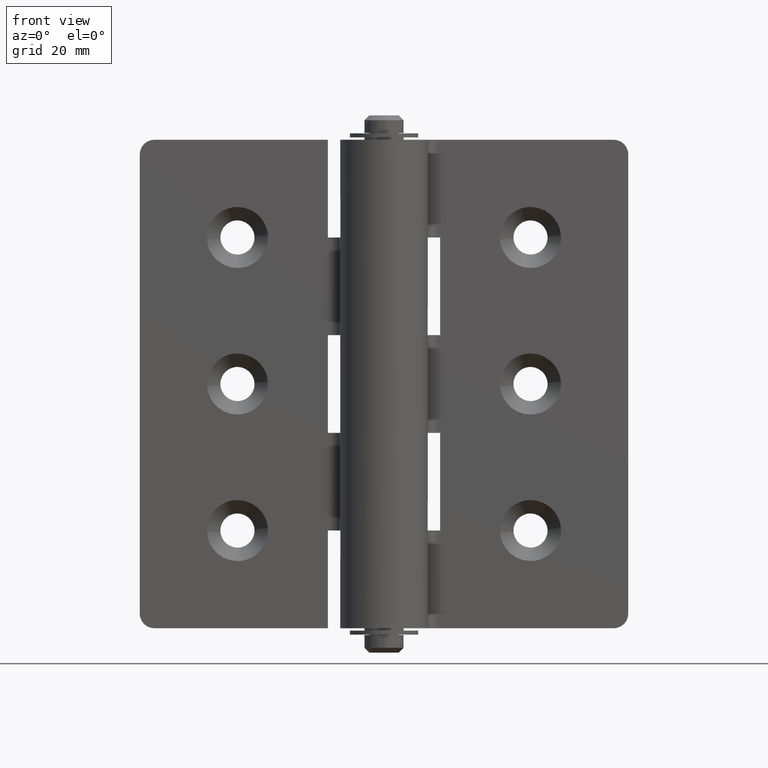
[diagram: clean part render]
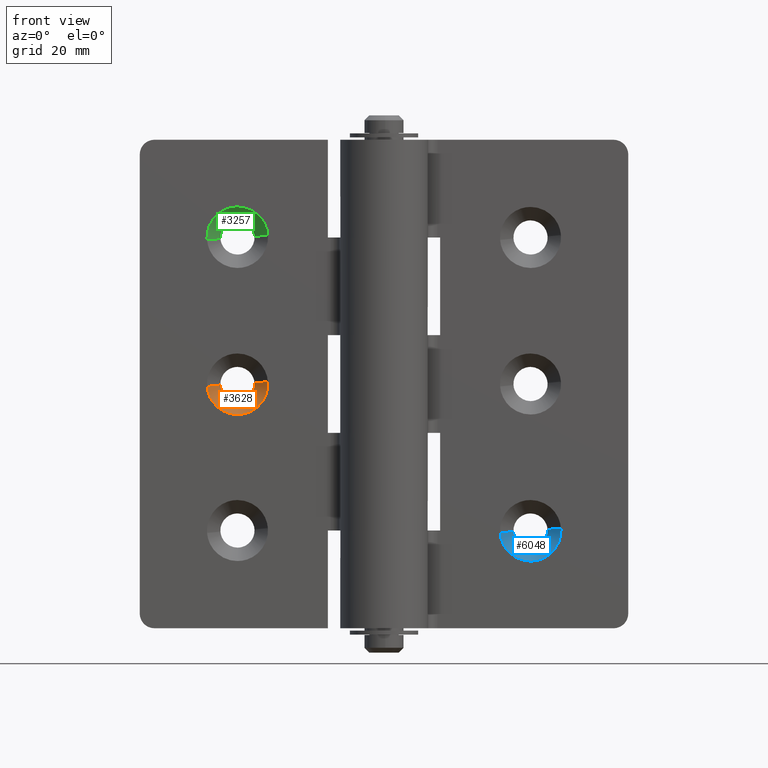
[diagram: same view with three faces highlighted in distinct colors, each labeled with its STEP entity id]
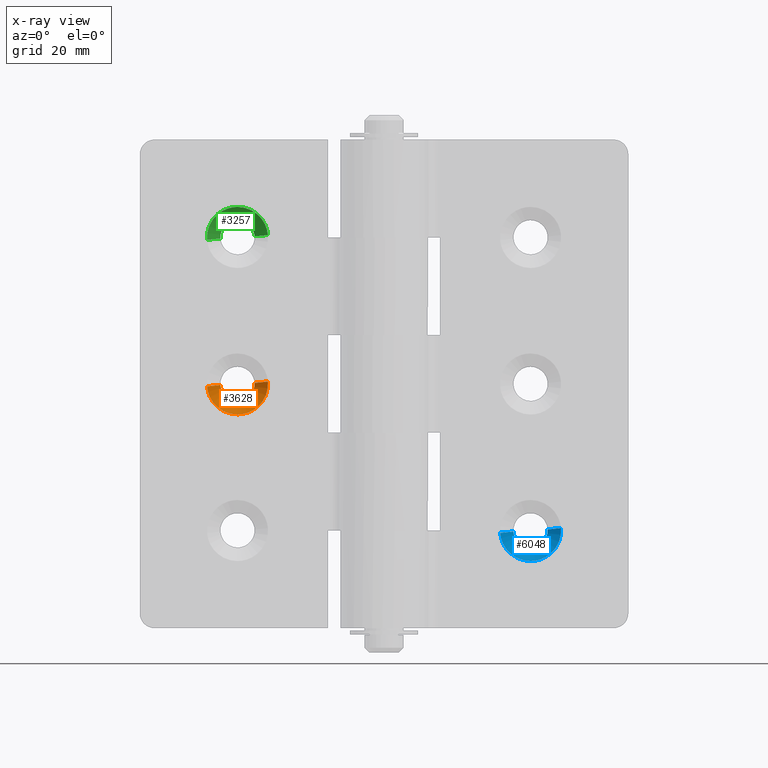
[diagram: x-ray of the same camera — body ghosted, the three highlighted faces saturated]
A machine part, front view with three faces highlighted in distinct colors.
The next image is the same camera in x-ray (body ghosted, the three faces saturated) — at least one of them is partly hidden behind the body in this view.
Their STEP definitions:

[orange] entity #3628 — the highlighted face is a freeform B-spline surface patch.
#3369=CARTESIAN_POINT('',(-33.493471831055729,5.749999999915170,49.786330708999522));
#3370=VERTEX_POINT('',#3369);
#3376=CARTESIAN_POINT('',(-30.0,5.750000000000000,46.500000000000000));
#3377=VERTEX_POINT('',#3376);
#3378=CARTESIAN_POINT('',(-30.0,5.750000000000000,46.500000000000000));
#3379=CARTESIAN_POINT('',(-33.237497301722996,5.749999999957585,46.530468772346985));
#3380=CARTESIAN_POINT('',(-33.493471831055729,5.749999999915170,49.786330708999515));
#3388=(BOUNDED_CURVE()B_SPLINE_CURVE(2,(#3378,#3379,#3380),.UNSPECIFIED.,.F.,.U.)B_SPLINE_CURVE_WITH_KNOTS((3,3),(0.500000000000000,0.736331300601017),.UNSPECIFIED.)CURVE()GEOMETRIC_REPRESENTATION_ITEM()RATIONAL_B_SPLINE_CURVE((1.0,0.723120658642394,0.969723356105556))REPRESENTATION_ITEM(''));
#3389=EDGE_CURVE('',#3377,#3370,#3388,.T.);
#3391=CARTESIAN_POINT('',(-26.506528205584232,5.749999999915169,50.213669890060061));
#3392=VERTEX_POINT('',#3391);
#3393=CARTESIAN_POINT('',(-26.506528205584221,5.749999999915169,50.213669890060061));
#3394=CARTESIAN_POINT('',(-26.499999999958376,5.749999999916399,50.106934672393429));
#3395=CARTESIAN_POINT('',(-26.499999999959030,5.749999999917705,50.000000000003951));
#3396=CARTESIAN_POINT('',(-26.499999999980503,5.749999999960471,46.500000000001890));
#3397=CARTESIAN_POINT('',(-30.0,5.750000000000000,46.500000000000000));
#3405=(BOUNDED_CURVE()B_SPLINE_CURVE(2,(#3393,#3394,#3395,#3396,#3397),.UNSPECIFIED.,.F.,.U.)B_SPLINE_CURVE_WITH_KNOTS((3,2,3),(0.239332962158794,0.250000000000000,0.500000000000000),.UNSPECIFIED.)CURVE()GEOMETRIC_REPRESENTATION_ITEM()RATIONAL_B_SPLINE_CURVE((0.976072041494943,0.987502787805937,1.0,0.707106781186547,1.0))REPRESENTATION_ITEM(''));
#3406=EDGE_CURVE('',#3392,#3377,#3405,.T.);
#3522=CARTESIAN_POINT('',(-23.769266664164942,2.999999999992341,50.490369348358414));
#3523=VERTEX_POINT('',#3522);
#3524=CARTESIAN_POINT('',(-26.506528205584232,5.749999999915169,50.213669890060061));
#3525=CARTESIAN_POINT('',(-23.769266664164942,2.999999999992341,50.490369348358414));
#3526=QUASI_UNIFORM_CURVE('',1,(#3524,#3525),.UNSPECIFIED.,.F.,.U.);
#3527=EDGE_CURVE('',#3392,#3523,#3526,.T.);
#3544=CARTESIAN_POINT('',(-36.230733335835062,2.999999999992339,49.509630651641586));
#3545=VERTEX_POINT('',#3544);
#3561=CARTESIAN_POINT('',(-33.493471831055729,5.749999999915170,49.786330708999522));
#3562=CARTESIAN_POINT('',(-36.230733335835062,2.999999999992339,49.509630651641586));
#3563=QUASI_UNIFORM_CURVE('',1,(#3561,#3562),.UNSPECIFIED.,.F.,.U.);
#3564=EDGE_CURVE('',#3370,#3545,#3563,.T.);
#3570=CARTESIAN_POINT('',(-33.429091664658159,5.818750000000002,49.837761569587094));
#3571=CARTESIAN_POINT('',(-33.424909575169870,5.818750000000002,49.784623084323862));
#3572=CARTESIAN_POINT('',(-33.151459829155627,5.818750000000001,46.310114626412037));
#3573=CARTESIAN_POINT('',(-29.730787227783829,5.818750000000001,46.579327398628202));
#3574=CARTESIAN_POINT('',(-26.310114626412034,5.818750000000001,46.848540170844359));
#3575=CARTESIAN_POINT('',(-26.581237139415947,5.818750000000001,50.293478329658328));
#3576=CARTESIAN_POINT('',(-26.583135690121903,5.818750000000000,50.317601703630231));
#3577=CARTESIAN_POINT('',(-36.316493029466621,2.929531249999999,49.701151787402893));
#3578=CARTESIAN_POINT('',(-36.308789491129147,2.929531250000000,49.603269052094014));
#3579=CARTESIAN_POINT('',(-35.805086591492447,2.929531250000000,43.203116883105345));
#3580=CARTESIAN_POINT('',(-29.504101737298889,2.929531249999999,43.699015145806449));
#3581=CARTESIAN_POINT('',(-23.203116883105334,2.929531250000000,44.194913408507553));
#3582=CARTESIAN_POINT('',(-23.702532947473351,2.929531249999998,50.540596170902049));
#3583=CARTESIAN_POINT('',(-23.706030136663077,2.929531249999998,50.585032172748022));
#3591=(BOUNDED_SURFACE()B_SPLINE_SURFACE(2,1,((#3570,#3577),(#3571,#3578),(#3572,#3579),(#3573,#3580),(#3574,#3581),(#3575,#3582),(#3576,#3583)),.UNSPECIFIED.,.F.,.F.,.U.)B_SPLINE_SURFACE_WITH_KNOTS((3,1,2,1,3),(2,2),(0.0,0.234611430297601,10.706706937518890,21.178802444740182,21.284169621152380),(0.0,4.086971233008343),.UNSPECIFIED.)GEOMETRIC_REPRESENTATION_ITEM()RATIONAL_B_SPLINE_SURFACE(((1.013123657427094,1.013123657427094),(1.006561828713547,1.006561828713547),(0.707106781186548,0.707106781186548),(1.0,1.0),(0.707106781186548,0.707106781186548),(1.002947006302165,1.002947006302165),(1.005894012604330,1.005894012604330)))REPRESENTATION_ITEM('')SURFACE());
#3592=ORIENTED_EDGE('',*,*,#3406,.T.);
#3593=ORIENTED_EDGE('',*,*,#3389,.T.);
#3594=ORIENTED_EDGE('',*,*,#3564,.T.);
#3595=CARTESIAN_POINT('',(-30.0,3.0,43.750000000000007));
#3596=VERTEX_POINT('',#3595);
#3597=CARTESIAN_POINT('',(-30.0,3.0,43.750000000000007));
#3598=CARTESIAN_POINT('',(-35.777440572812921,2.999999999996170,43.749999999999709));
#3599=CARTESIAN_POINT('',(-36.230733335835055,2.999999999992339,49.509630651641586));
#3607=(BOUNDED_CURVE()B_SPLINE_CURVE(2,(#3597,#3598,#3599),.UNSPECIFIED.,.F.,.U.)B_SPLINE_CURVE_WITH_KNOTS((3,3),(0.500000000000000,0.736331300631149),.UNSPECIFIED.)CURVE()GEOMETRIC_REPRESENTATION_ITEM()RATIONAL_B_SPLINE_CURVE((1.0,0.723120658607092,0.969723356168440))REPRESENTATION_ITEM(''));
#3608=EDGE_CURVE('',#3596,#3545,#3607,.T.);
#3609=ORIENTED_EDGE('',*,*,#3608,.F.);
#3610=CARTESIAN_POINT('',(-23.769266664164945,2.999999999992342,50.490369348358414));
#3611=CARTESIAN_POINT('',(-23.749999999992507,2.999999999992481,50.245563168828049));
#3612=CARTESIAN_POINT('',(-23.749999999992649,2.999999999992631,50.000000000000583));
#3613=CARTESIAN_POINT('',(-23.749999999996476,2.999999999996461,43.750000000000284));
#3614=CARTESIAN_POINT('',(-30.0,3.0,43.750000000000007));
#3622=(BOUNDED_CURVE()B_SPLINE_CURVE(2,(#3610,#3611,#3612,#3613,#3614),.UNSPECIFIED.,.F.,.U.)B_SPLINE_CURVE_WITH_KNOTS((3,2,3),(0.236331300631150,0.250000000000000,0.500000000000000),.UNSPECIFIED.)CURVE()GEOMETRIC_REPRESENTATION_ITEM()RATIONAL_B_SPLINE_CURVE((0.969723356168440,0.983986122579456,1.0,0.707106781186547,1.0))REPRESENTATION_ITEM(''));
#3623=EDGE_CURVE('',#3523,#3596,#3622,.T.);
#3624=ORIENTED_EDGE('',*,*,#3623,.F.);
#3625=ORIENTED_EDGE('',*,*,#3527,.F.);
#3626=EDGE_LOOP('',(#3592,#3593,#3594,#3609,#3624,#3625));
#3627=FACE_OUTER_BOUND('',#3626,.T.);
#3628=ADVANCED_FACE('',(#3627),#3591,.F.);

[blue] entity #6048 — the highlighted face is a freeform B-spline surface patch.
#5789=CARTESIAN_POINT('',(26.506528168944271,5.749999999915168,19.786330708999522));
#5790=VERTEX_POINT('',#5789);
#5796=CARTESIAN_POINT('',(30.0,5.750000000000000,16.500000000000000));
#5797=VERTEX_POINT('',#5796);
#5798=CARTESIAN_POINT('',(30.0,5.750000000000000,16.500000000000000));
#5799=CARTESIAN_POINT('',(26.762502698277014,5.749999999957585,16.530468772346989));
#5800=CARTESIAN_POINT('',(26.506528168944275,5.749999999915168,19.786330708999522));
#5808=(BOUNDED_CURVE()B_SPLINE_CURVE(2,(#5798,#5799,#5800),.UNSPECIFIED.,.F.,.U.)B_SPLINE_CURVE_WITH_KNOTS((3,3),(0.500000000000000,0.736331300601017),.UNSPECIFIED.)CURVE()GEOMETRIC_REPRESENTATION_ITEM()RATIONAL_B_SPLINE_CURVE((1.0,0.723120658642394,0.969723356105556))REPRESENTATION_ITEM(''));
#5809=EDGE_CURVE('',#5797,#5790,#5808,.T.);
#5811=CARTESIAN_POINT('',(33.493471794415782,5.749999999915168,20.213669890060061));
#5812=VERTEX_POINT('',#5811);
#5813=CARTESIAN_POINT('',(33.493471794415775,5.749999999915168,20.213669890060057));
#5814=CARTESIAN_POINT('',(33.500000000041616,5.749999999916398,20.106934672393425));
#5815=CARTESIAN_POINT('',(33.500000000040970,5.749999999917704,20.000000000003940));
#5816=CARTESIAN_POINT('',(33.500000000019504,5.749999999960471,16.500000000001876));
#5817=CARTESIAN_POINT('',(30.0,5.750000000000000,16.500000000000000));
#5825=(BOUNDED_CURVE()B_SPLINE_CURVE(2,(#5813,#5814,#5815,#5816,#5817),.UNSPECIFIED.,.F.,.U.)B_SPLINE_CURVE_WITH_KNOTS((3,2,3),(0.239332962158794,0.250000000000000,0.500000000000000),.UNSPECIFIED.)CURVE()GEOMETRIC_REPRESENTATION_ITEM()RATIONAL_B_SPLINE_CURVE((0.976072041494943,0.987502787805937,1.0,0.707106781186547,1.0))REPRESENTATION_ITEM(''));
#5826=EDGE_CURVE('',#5812,#5797,#5825,.T.);
#5942=CARTESIAN_POINT('',(36.230733335835062,2.999999999992341,20.490369348358410));
#5943=VERTEX_POINT('',#5942);
#5944=CARTESIAN_POINT('',(33.493471794415782,5.749999999915168,20.213669890060061));
#5945=CARTESIAN_POINT('',(36.230733335835062,2.999999999992341,20.490369348358410));
#5946=QUASI_UNIFORM_CURVE('',1,(#5944,#5945),.UNSPECIFIED.,.F.,.U.);
#5947=EDGE_CURVE('',#5812,#5943,#5946,.T.);
#5964=CARTESIAN_POINT('',(23.769266664164942,2.999999999992340,19.509630651641590));
#5965=VERTEX_POINT('',#5964);
#5981=CARTESIAN_POINT('',(26.506528168944271,5.749999999915168,19.786330708999522));
#5982=CARTESIAN_POINT('',(23.769266664164942,2.999999999992340,19.509630651641590));
#5983=QUASI_UNIFORM_CURVE('',1,(#5981,#5982),.UNSPECIFIED.,.F.,.U.);
#5984=EDGE_CURVE('',#5790,#5965,#5983,.T.);
#5990=CARTESIAN_POINT('',(26.570908335341862,5.818750000000005,19.837761569587109));
#5991=CARTESIAN_POINT('',(26.575090424830137,5.818750000000000,19.784623084323858));
#5992=CARTESIAN_POINT('',(26.848540170844380,5.818750000000001,16.310114626412030));
#5993=CARTESIAN_POINT('',(30.269212772216171,5.818750000000001,16.579327398628209));
#5994=CARTESIAN_POINT('',(33.689885373587963,5.818750000000001,16.848540170844373));
#5995=CARTESIAN_POINT('',(33.418762860584032,5.818750000000000,20.293478329658328));
#5996=CARTESIAN_POINT('',(33.416864309878100,5.818750000000003,20.317601703630249));
#5997=CARTESIAN_POINT('',(23.683506970533394,2.929531250000001,19.701151787402914));
#5998=CARTESIAN_POINT('',(23.691210508870849,2.929531249999998,19.603269052094003));
#5999=CARTESIAN_POINT('',(24.194913408507560,2.929531250000000,13.203116883105338));
#6000=CARTESIAN_POINT('',(30.495898262701111,2.929531249999999,13.699015145806451));
#6001=CARTESIAN_POINT('',(36.796883116894662,2.929531250000000,14.194913408507553));
#6002=CARTESIAN_POINT('',(36.297467052526642,2.929531249999998,20.540596170902045));
#6003=CARTESIAN_POINT('',(36.293969863336926,2.929531250000001,20.585032172748043));
#6011=(BOUNDED_SURFACE()B_SPLINE_SURFACE(2,1,((#5990,#5997),(#5991,#5998),(#5992,#5999),(#5993,#6000),(#5994,#6001),(#5995,#6002),(#5996,#6003)),.UNSPECIFIED.,.F.,.F.,.U.)B_SPLINE_SURFACE_WITH_KNOTS((3,1,2,1,3),(2,2),(0.0,0.234611430297625,10.706706937518920,21.178802444740221,21.284169621152412),(0.0,4.086971233008349),.UNSPECIFIED.)GEOMETRIC_REPRESENTATION_ITEM()RATIONAL_B_SPLINE_SURFACE(((1.013123657427095,1.013123657427095),(1.006561828713548,1.006561828713548),(0.707106781186548,0.707106781186548),(1.0,1.0),(0.707106781186548,0.707106781186548),(1.002947006302165,1.002947006302165),(1.005894012604329,1.005894012604329)))REPRESENTATION_ITEM('')SURFACE());
#6012=ORIENTED_EDGE('',*,*,#5826,.T.);
#6013=ORIENTED_EDGE('',*,*,#5809,.T.);
#6014=ORIENTED_EDGE('',*,*,#5984,.T.);
#6015=CARTESIAN_POINT('',(30.0,3.0,13.750000000000000));
#6016=VERTEX_POINT('',#6015);
#6017=CARTESIAN_POINT('',(30.0,3.0,13.750000000000000));
#6018=CARTESIAN_POINT('',(24.222559427187058,2.999999999996170,13.749999999999698));
#6019=CARTESIAN_POINT('',(23.769266664164942,2.999999999992341,19.509630651641583));
#6027=(BOUNDED_CURVE()B_SPLINE_CURVE(2,(#6017,#6018,#6019),.UNSPECIFIED.,.F.,.U.)B_SPLINE_CURVE_WITH_KNOTS((3,3),(0.500000000000000,0.736331300631150),.UNSPECIFIED.)CURVE()GEOMETRIC_REPRESENTATION_ITEM()RATIONAL_B_SPLINE_CURVE((1.0,0.723120658607092,0.969723356168440))REPRESENTATION_ITEM(''));
#6028=EDGE_CURVE('',#6016,#5965,#6027,.T.);
#6029=ORIENTED_EDGE('',*,*,#6028,.F.);
#6030=CARTESIAN_POINT('',(36.230733335835055,2.999999999992342,20.490369348358414));
#6031=CARTESIAN_POINT('',(36.250000000007503,2.999999999992481,20.245563168828053));
#6032=CARTESIAN_POINT('',(36.250000000007340,2.999999999992631,20.000000000000579));
#6033=CARTESIAN_POINT('',(36.250000000003524,2.999999999996461,13.750000000000275));
#6034=CARTESIAN_POINT('',(30.0,3.0,13.750000000000000));
#6042=(BOUNDED_CURVE()B_SPLINE_CURVE(2,(#6030,#6031,#6032,#6033,#6034),.UNSPECIFIED.,.F.,.U.)B_SPLINE_CURVE_WITH_KNOTS((3,2,3),(0.236331300631150,0.250000000000000,0.500000000000000),.UNSPECIFIED.)CURVE()GEOMETRIC_REPRESENTATION_ITEM()RATIONAL_B_SPLINE_CURVE((0.969723356168440,0.983986122579456,1.0,0.707106781186547,1.0))REPRESENTATION_ITEM(''));
#6043=EDGE_CURVE('',#5943,#6016,#6042,.T.);
#6044=ORIENTED_EDGE('',*,*,#6043,.F.);
#6045=ORIENTED_EDGE('',*,*,#5947,.F.);
#6046=EDGE_LOOP('',(#6012,#6013,#6014,#6029,#6044,#6045));
#6047=FACE_OUTER_BOUND('',#6046,.T.);
#6048=ADVANCED_FACE('',(#6047),#6011,.F.);

[green] entity #3257 — the highlighted face is a freeform B-spline surface patch.
#3057=CARTESIAN_POINT('',(-33.493471831055729,5.749999999915168,79.786330708999529));
#3058=VERTEX_POINT('',#3057);
#3079=CARTESIAN_POINT('',(-26.506528205584232,5.749999999915168,80.213669890060061));
#3080=VERTEX_POINT('',#3079);
#3138=CARTESIAN_POINT('',(-30.0,5.750000000000000,83.500000000000000));
#3139=VERTEX_POINT('',#3138);
#3140=CARTESIAN_POINT('',(-30.0,5.750000000000000,83.500000000000000));
#3141=CARTESIAN_POINT('',(-26.762502716597002,5.749999999957583,83.469531527182809));
#3142=CARTESIAN_POINT('',(-26.506528205584221,5.749999999915168,80.213669890060061));
#3150=(BOUNDED_CURVE()B_SPLINE_CURVE(2,(#3140,#3141,#3142),.UNSPECIFIED.,.F.,.U.)B_SPLINE_CURVE_WITH_KNOTS((3,3),(0.0,0.236331300601017),.UNSPECIFIED.)CURVE()GEOMETRIC_REPRESENTATION_ITEM()RATIONAL_B_SPLINE_CURVE((1.0,0.723120658642395,0.969723356105555))REPRESENTATION_ITEM(''));
#3151=EDGE_CURVE('',#3139,#3080,#3150,.T.);
#3153=CARTESIAN_POINT('',(-33.493471831055729,5.749999999915168,79.786330708999529));
#3154=CARTESIAN_POINT('',(-33.500000000041574,5.749999999916399,79.893065627976227));
#3155=CARTESIAN_POINT('',(-33.500000000040920,5.749999999917705,79.999999999996064));
#3156=CARTESIAN_POINT('',(-33.500000000019469,5.749999999960471,83.499999999998124));
#3157=CARTESIAN_POINT('',(-30.0,5.750000000000000,83.500000000000000));
#3165=(BOUNDED_CURVE()B_SPLINE_CURVE(2,(#3153,#3154,#3155,#3156,#3157),.UNSPECIFIED.,.F.,.U.)B_SPLINE_CURVE_WITH_KNOTS((3,2,3),(0.739332991747071,0.750000000000000,1.0),.UNSPECIFIED.)CURVE()GEOMETRIC_REPRESENTATION_ITEM()RATIONAL_B_SPLINE_CURVE((0.976072104908262,0.987502822470760,1.0,0.707106781186547,1.0))REPRESENTATION_ITEM(''));
#3166=EDGE_CURVE('',#3058,#3139,#3165,.T.);
#3187=CARTESIAN_POINT('',(-26.570908380546456,5.818750000000002,80.162239004791886));
#3188=CARTESIAN_POINT('',(-26.575090447728094,5.818750000000001,80.215377206622236));
#3189=CARTESIAN_POINT('',(-26.848540170844380,5.818750000000001,83.689885373587956));
#3190=CARTESIAN_POINT('',(-30.269212772216171,5.818750000000001,83.420672601371791));
#3191=CARTESIAN_POINT('',(-33.689885373587977,5.818750000000001,83.151459829155627));
#3192=CARTESIAN_POINT('',(-33.418762860698791,5.818750000000001,79.706521671799621));
#3193=CARTESIAN_POINT('',(-33.416864310106241,5.818750000000001,79.682398299268613));
#3194=CARTESIAN_POINT('',(-23.683507053801673,2.929531250000000,80.298849270620948));
#3195=CARTESIAN_POINT('',(-23.691210551049593,2.929531249999999,80.396731483837698));
#3196=CARTESIAN_POINT('',(-24.194913408507560,2.929531250000000,86.796883116894662));
#3197=CARTESIAN_POINT('',(-30.495898262701111,2.929531249999999,86.300984854193558));
#3198=CARTESIAN_POINT('',(-36.796883116894662,2.929531250000000,85.805086591492454));
#3199=CARTESIAN_POINT('',(-36.297467052738007,2.929531249999999,79.459403831783533));
#3200=CARTESIAN_POINT('',(-36.293969863757148,2.929531250000000,79.414967832591742));
#3208=(BOUNDED_SURFACE()B_SPLINE_SURFACE(2,1,((#3187,#3194),(#3188,#3195),(#3189,#3196),(#3190,#3197),(#3191,#3198),(#3192,#3199),(#3193,#3200)),.UNSPECIFIED.,.F.,.F.,.U.)B_SPLINE_SURFACE_WITH_KNOTS((3,1,2,1,3),(2,2),(0.0,0.234610154063054,10.706705661284349,21.178801168505650,21.284168338568371),(0.0,4.086971222282953),.UNSPECIFIED.)GEOMETRIC_REPRESENTATION_ITEM()RATIONAL_B_SPLINE_SURFACE(((1.013123586037286,1.013123586037286),(1.006561793018643,1.006561793018643),(0.707106781186548,0.707106781186548),(1.0,1.0),(0.707106781186548,0.707106781186548),(1.002947006124577,1.002947006124577),(1.005894012249154,1.005894012249154)))REPRESENTATION_ITEM('')SURFACE());
#3209=ORIENTED_EDGE('',*,*,#3151,.T.);
#3210=CARTESIAN_POINT('',(-23.769266664164942,2.999999999992340,80.490369348358399));
#3211=VERTEX_POINT('',#3210);
#3212=CARTESIAN_POINT('',(-26.506528205584232,5.749999999915168,80.213669890060061));
#3213=CARTESIAN_POINT('',(-23.769266664164942,2.999999999992340,80.490369348358399));
#3214=QUASI_UNIFORM_CURVE('',1,(#3212,#3213),.UNSPECIFIED.,.F.,.U.);
#3215=EDGE_CURVE('',#3080,#3211,#3214,.T.);
#3216=ORIENTED_EDGE('',*,*,#3215,.T.);
#3217=CARTESIAN_POINT('',(-30.0,3.0,86.250000000000014));
#3218=VERTEX_POINT('',#3217);
#3219=CARTESIAN_POINT('',(-30.0,3.0,86.250000000000014));
#3220=CARTESIAN_POINT('',(-24.222559427187036,2.999999999996170,86.250000000000341));
#3221=CARTESIAN_POINT('',(-23.769266664164938,2.999999999992340,80.490369348358399));
#3229=(BOUNDED_CURVE()B_SPLINE_CURVE(2,(#3219,#3220,#3221),.UNSPECIFIED.,.F.,.U.)B_SPLINE_CURVE_WITH_KNOTS((3,3),(0.0,0.236331300631150),.UNSPECIFIED.)CURVE()GEOMETRIC_REPRESENTATION_ITEM()RATIONAL_B_SPLINE_CURVE((1.0,0.723120658607091,0.969723356168442))REPRESENTATION_ITEM(''));
#3230=EDGE_CURVE('',#3218,#3211,#3229,.T.);
#3231=ORIENTED_EDGE('',*,*,#3230,.F.);
#3232=CARTESIAN_POINT('',(-36.230733335835062,2.999999999992342,79.509630651641601));
#3233=VERTEX_POINT('',#3232);
#3234=CARTESIAN_POINT('',(-36.230733335835055,2.999999999992342,79.509630651641601));
#3235=CARTESIAN_POINT('',(-36.250000000007489,2.999999999992481,79.754436831171958));
#3236=CARTESIAN_POINT('',(-36.250000000007333,2.999999999992632,79.999999999999446));
#3237=CARTESIAN_POINT('',(-36.250000000003524,2.999999999996461,86.249999999999730));
#3238=CARTESIAN_POINT('',(-30.0,3.0,86.250000000000014));
#3246=(BOUNDED_CURVE()B_SPLINE_CURVE(2,(#3234,#3235,#3236,#3237,#3238),.UNSPECIFIED.,.F.,.U.)B_SPLINE_CURVE_WITH_KNOTS((3,2,3),(0.736331300631150,0.750000000000000,1.0),.UNSPECIFIED.)CURVE()GEOMETRIC_REPRESENTATION_ITEM()RATIONAL_B_SPLINE_CURVE((0.969723356168441,0.983986122579457,1.0,0.707106781186547,1.0))REPRESENTATION_ITEM(''));
#3247=EDGE_CURVE('',#3233,#3218,#3246,.T.);
#3248=ORIENTED_EDGE('',*,*,#3247,.F.);
#3249=CARTESIAN_POINT('',(-33.493471831055729,5.749999999915168,79.786330708999529));
#3250=CARTESIAN_POINT('',(-36.230733335835062,2.999999999992342,79.509630651641601));
#3251=QUASI_UNIFORM_CURVE('',1,(#3249,#3250),.UNSPECIFIED.,.F.,.U.);
#3252=EDGE_CURVE('',#3058,#3233,#3251,.T.);
#3253=ORIENTED_EDGE('',*,*,#3252,.F.);
#3254=ORIENTED_EDGE('',*,*,#3166,.T.);
#3255=EDGE_LOOP('',(#3209,#3216,#3231,#3248,#3253,#3254));
#3256=FACE_OUTER_BOUND('',#3255,.T.);
#3257=ADVANCED_FACE('',(#3256),#3208,.F.);